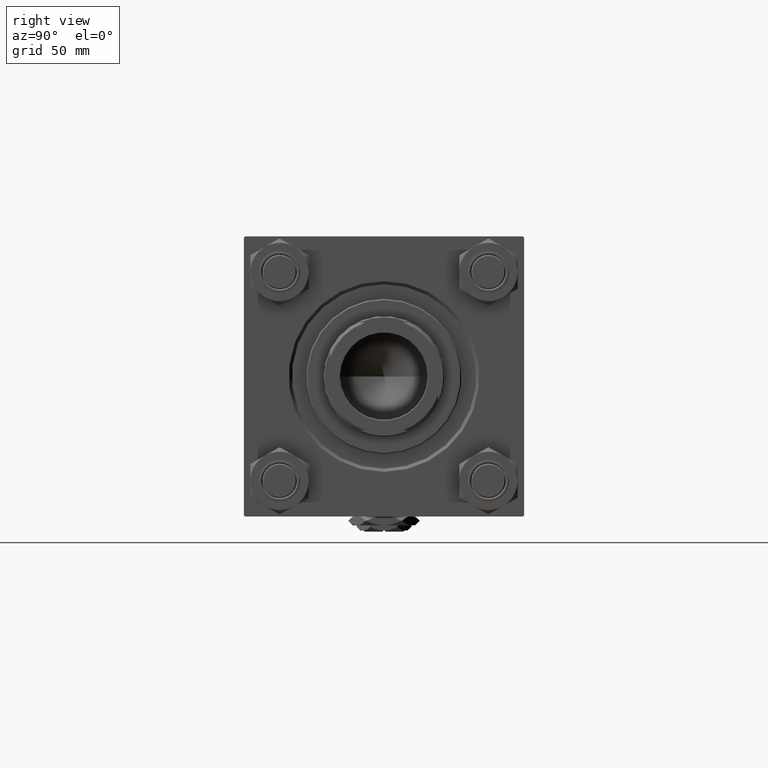
[diagram: clean part render]
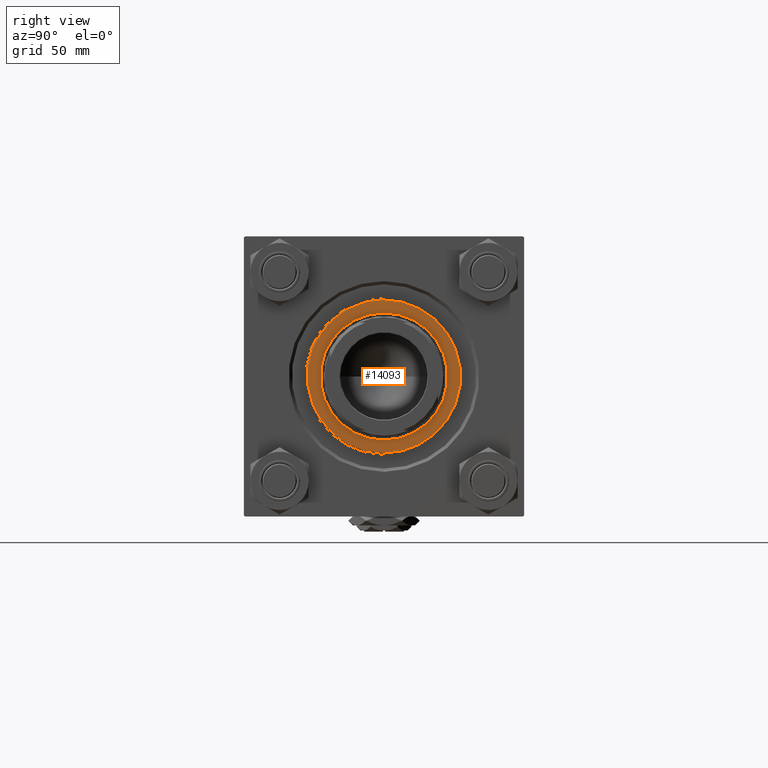
[diagram: same view with one face highlighted and labeled with its STEP entity id]
A machine part, right view. The second image highlights one B-rep face of the part: STEP entity #14093.
In plain terms, the highlighted planar face has unit normal (1, 0, -0).
Its self-contained STEP definition (entity closure, byte-faithful):
#730 = DIRECTION ( 'NONE',  ( 0.000000000000000000, 0.000000000000000000, 1.000000000000000000 ) ) ;
#1476 = CIRCLE ( 'NONE', #24343, 35.49999999999999289 ) ;
#2000 = AXIS2_PLACEMENT_3D ( 'NONE', #14824, #51625, #47137 ) ;
#2025 = CARTESIAN_POINT ( 'NONE',  ( 29.50000000000000355, 0.000000000000000000, 38.69999999999999574 ) ) ;
#6296 = VERTEX_POINT ( 'NONE', #34072 ) ;
#7149 = FACE_OUTER_BOUND ( 'NONE', #8427, .T. ) ;
#8427 = EDGE_LOOP ( 'NONE', ( #14114, #24530 ) ) ;
#8923 = ORIENTED_EDGE ( 'NONE', *, *, #51580, .F. ) ;
#9189 = CARTESIAN_POINT ( 'NONE',  ( 0.000000000000000000, 0.000000000000000000, 38.69999999999999574 ) ) ;
#9216 = DIRECTION ( 'NONE',  ( 0.000000000000000000, 0.000000000000000000, 1.000000000000000000 ) ) ;
#9450 = DIRECTION ( 'NONE',  ( 1.000000000000000000, 0.000000000000000000, 0.000000000000000000 ) ) ;
#9479 = CIRCLE ( 'NONE', #39101, 29.50000000000000355 ) ;
#10957 = ORIENTED_EDGE ( 'NONE', *, *, #12111, .F. ) ;
#12111 = EDGE_CURVE ( 'NONE', #47010, #20302, #43344, .T. ) ;
#14093 = ADVANCED_FACE ( 'NONE', ( #19590, #7149 ), #34943, .T. ) ;
#14114 = ORIENTED_EDGE ( 'NONE', *, *, #39748, .T. ) ;
#14824 = CARTESIAN_POINT ( 'NONE',  ( 0.000000000000000000, 0.000000000000000000, 38.69999999999999574 ) ) ;
#15458 = AXIS2_PLACEMENT_3D ( 'NONE', #9189, #730, #9450 ) ;
#15988 = DIRECTION ( 'NONE',  ( 1.000000000000000000, 0.000000000000000000, 0.000000000000000000 ) ) ;
#19587 = EDGE_LOOP ( 'NONE', ( #8923, #10957 ) ) ;
#19590 = FACE_BOUND ( 'NONE', #19587, .T. ) ;
#20302 = VERTEX_POINT ( 'NONE', #2025 ) ;
#21417 = DIRECTION ( 'NONE',  ( 1.000000000000000000, 0.000000000000000000, 0.000000000000000000 ) ) ;
#22600 = CARTESIAN_POINT ( 'NONE',  ( 0.000000000000000000, 0.000000000000000000, 38.69999999999999574 ) ) ;
#24343 = AXIS2_PLACEMENT_3D ( 'NONE', #22600, #26826, #38468 ) ;
#24530 = ORIENTED_EDGE ( 'NONE', *, *, #37545, .T. ) ;
#26826 = DIRECTION ( 'NONE',  ( 0.000000000000000000, 0.000000000000000000, 1.000000000000000000 ) ) ;
#26852 = AXIS2_PLACEMENT_3D ( 'NONE', #45483, #9216, #21417 ) ;
#30164 = CIRCLE ( 'NONE', #26852, 35.49999999999999289 ) ;
#30300 = CARTESIAN_POINT ( 'NONE',  ( -29.50000000000000355, 3.612708057484692393E-15, 38.69999999999999574 ) ) ;
#34072 = CARTESIAN_POINT ( 'NONE',  ( 35.49999999999999289, 4.378112306951787069E-15, 38.69999999999999574 ) ) ;
#34943 = PLANE ( 'NONE',  #2000 ) ;
#37545 = EDGE_CURVE ( 'NONE', #6296, #41308, #30164, .T. ) ;
#38468 = DIRECTION ( 'NONE',  ( 1.000000000000000000, 0.000000000000000000, 0.000000000000000000 ) ) ;
#39101 = AXIS2_PLACEMENT_3D ( 'NONE', #44050, #44822, #15988 ) ;
#39748 = EDGE_CURVE ( 'NONE', #41308, #6296, #1476, .T. ) ;
#40420 = CARTESIAN_POINT ( 'NONE',  ( -35.49999999999999289, 0.000000000000000000, 38.69999999999999574 ) ) ;
#41308 = VERTEX_POINT ( 'NONE', #40420 ) ;
#43344 = CIRCLE ( 'NONE', #15458, 29.50000000000000355 ) ;
#44050 = CARTESIAN_POINT ( 'NONE',  ( 0.000000000000000000, 0.000000000000000000, 38.69999999999999574 ) ) ;
#44822 = DIRECTION ( 'NONE',  ( 0.000000000000000000, 0.000000000000000000, 1.000000000000000000 ) ) ;
#45483 = CARTESIAN_POINT ( 'NONE',  ( 0.000000000000000000, 0.000000000000000000, 38.69999999999999574 ) ) ;
#47010 = VERTEX_POINT ( 'NONE', #30300 ) ;
#47137 = DIRECTION ( 'NONE',  ( 1.000000000000000000, 0.000000000000000000, -0.000000000000000000 ) ) ;
#51580 = EDGE_CURVE ( 'NONE', #20302, #47010, #9479, .T. ) ;
#51625 = DIRECTION ( 'NONE',  ( 0.000000000000000000, 0.000000000000000000, 1.000000000000000000 ) ) ;